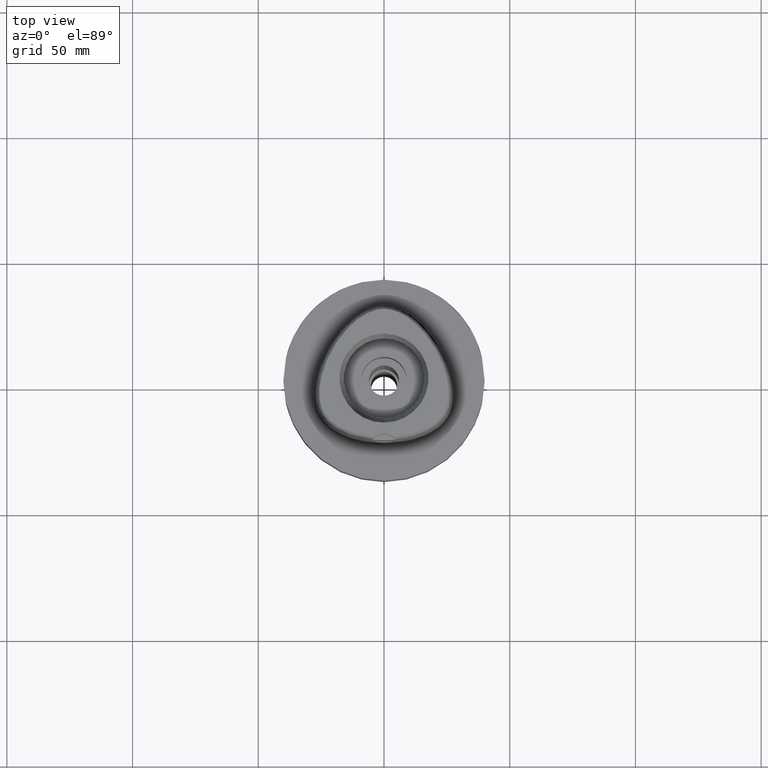
[diagram: clean part render]
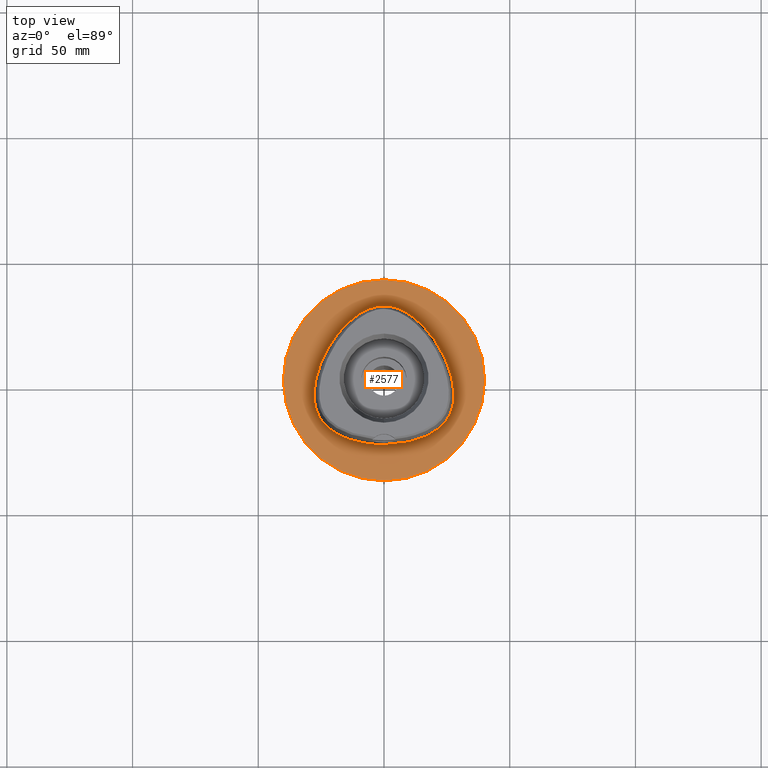
[diagram: same view with one face highlighted and labeled with its STEP entity id]
A machine part, top view. The second image highlights one B-rep face of the part: STEP entity #2577.
In plain terms, the highlighted planar face has unit normal (0, 0, -1).
Its self-contained STEP definition (entity closure, byte-faithful):
#267=CARTESIAN_POINT('',(0.E0,1.359357947054E-14,0.E0));
#268=DIRECTION('',(0.E0,0.E0,-1.E0));
#269=DIRECTION('',(0.E0,-1.E0,0.E0));
#270=AXIS2_PLACEMENT_3D('',#267,#268,#269);
#275=CARTESIAN_POINT('',(0.E0,1.359357947054E-14,0.E0));
#276=DIRECTION('',(0.E0,0.E0,-1.E0));
#277=DIRECTION('',(0.E0,1.E0,0.E0));
#278=AXIS2_PLACEMENT_3D('',#275,#276,#277);
#283=CARTESIAN_POINT('',(-8.036716515687E-12,-2.5575E1,2.597921877623E-14));
#284=CARTESIAN_POINT('',(1.338515790851E0,-2.5575E1,2.597921877623E-14));
#285=CARTESIAN_POINT('',(3.939707515365E0,-2.546652334613E1,
-1.205699739406E-14));
#286=CARTESIAN_POINT('',(7.652850955301E0,-2.500966422380E1,0.E0));
#287=CARTESIAN_POINT('',(1.106090576747E1,-2.429716651201E1,0.E0));
#288=CARTESIAN_POINT('',(1.407290725112E1,-2.339094231728E1,0.E0));
#289=CARTESIAN_POINT('',(1.667547947411E1,-2.234788213829E1,0.E0));
#290=CARTESIAN_POINT('',(1.889604778195E1,-2.121008268511E1,0.E0));
#291=CARTESIAN_POINT('',(2.077131512628E1,-2.000881807363E1,0.E0));
#292=CARTESIAN_POINT('',(2.234115916953E1,-1.876659578607E1,0.E0));
#293=CARTESIAN_POINT('',(2.365406626127E1,-1.748614780695E1,0.E0));
#294=CARTESIAN_POINT('',(2.474292153434E1,-1.617030510265E1,0.E0));
#295=CARTESIAN_POINT('',(2.565228241188E1,-1.478296109799E1,0.E0));
#296=CARTESIAN_POINT('',(2.638887413372E1,-1.331055779839E1,0.E0));
#297=CARTESIAN_POINT('',(2.697976738765E1,-1.171140902483E1,0.E0));
#298=CARTESIAN_POINT('',(2.742760276128E1,-9.940217552898E0,0.E0));
#299=CARTESIAN_POINT('',(2.771668285009E1,-7.955905387904E0,0.E0));
#300=CARTESIAN_POINT('',(2.781652427170E1,-5.722018758381E0,0.E0));
#301=CARTESIAN_POINT('',(2.768735631323E1,-3.222991363601E0,0.E0));
#302=CARTESIAN_POINT('',(2.728353238384E1,-4.383059677163E-1,0.E0));
#303=CARTESIAN_POINT('',(2.655541475124E1,2.629654649069E0,0.E0));
#304=CARTESIAN_POINT('',(2.546170844383E1,5.940727057829E0,0.E0));
#305=CARTESIAN_POINT('',(2.398430672666E1,9.409517157888E0,0.E0));
#306=CARTESIAN_POINT('',(2.214456893484E1,1.290129967404E1,0.E0));
#307=CARTESIAN_POINT('',(2.003170428117E1,1.622404225064E1,0.E0));
#308=CARTESIAN_POINT('',(1.776055672195E1,1.922002565626E1,0.E0));
#309=CARTESIAN_POINT('',(1.544103451833E1,2.179939224478E1,0.E0));
#310=CARTESIAN_POINT('',(1.315510487299E1,2.393917309643E1,0.E0));
#311=CARTESIAN_POINT('',(1.095278745299E1,2.566039820528E1,0.E0));
#312=CARTESIAN_POINT('',(8.861642581630E0,2.700328474995E1,0.E0));
#313=CARTESIAN_POINT('',(6.891001859301E0,2.801632322351E1,0.E0));
#314=CARTESIAN_POINT('',(5.027045924749E0,2.874987980974E1,0.E0));
#315=CARTESIAN_POINT('',(3.265714107171E0,2.923924022867E1,0.E0));
#316=CARTESIAN_POINT('',(1.594839101736E0,2.951637111680E1,0.E0));
#317=CARTESIAN_POINT('',(5.235322502723E-1,2.957499999999E1,
1.957693266756E-14));
#318=CARTESIAN_POINT('',(2.336300583330E-11,2.9575E1,1.957693266756E-14));
#323=CARTESIAN_POINT('',(2.336300583330E-11,2.9575E1,1.957693266756E-14));
#324=CARTESIAN_POINT('',(-5.239019517998E-1,2.9575E1,1.957693266756E-14));
#325=CARTESIAN_POINT('',(-1.595906712881E0,2.951628925508E1,0.E0));
#326=CARTESIAN_POINT('',(-3.267739579839E0,2.923882224383E1,0.E0));
#327=CARTESIAN_POINT('',(-5.029833256539E0,2.874896327576E1,0.E0));
#328=CARTESIAN_POINT('',(-6.894604323008E0,2.801474661946E1,0.E0));
#329=CARTESIAN_POINT('',(-8.867238250302E0,2.700012191094E1,0.E0));
#330=CARTESIAN_POINT('',(-1.095984429612E1,2.565545705615E1,0.E0));
#331=CARTESIAN_POINT('',(-1.316422155477E1,2.393144615710E1,0.E0));
#332=CARTESIAN_POINT('',(-1.545129622648E1,2.178895709120E1,0.E0));
#333=CARTESIAN_POINT('',(-1.777137331456E1,1.920698742816E1,0.E0));
#334=CARTESIAN_POINT('',(-2.004270671218E1,1.620823259710E1,0.E0));
#335=CARTESIAN_POINT('',(-2.215419289204E1,1.288464896551E1,0.E0));
#336=CARTESIAN_POINT('',(-2.399181201204E1,9.393612293097E0,0.E0));
#337=CARTESIAN_POINT('',(-2.546689387072E1,5.926867792512E0,0.E0));
#338=CARTESIAN_POINT('',(-2.655843240716E1,2.618507370009E0,0.E0));
#339=CARTESIAN_POINT('',(-2.728415958214E1,-4.425142150947E-1,0.E0));
#340=CARTESIAN_POINT('',(-2.768757854154E1,-3.224749542560E0,0.E0));
#341=CARTESIAN_POINT('',(-2.781635082285E1,-5.724096363786E0,0.E0));
#342=CARTESIAN_POINT('',(-2.771718069971E1,-7.950065730501E0,0.E0));
#343=CARTESIAN_POINT('',(-2.742757293862E1,-9.942098561844E0,0.E0));
#344=CARTESIAN_POINT('',(-2.697755532506E1,-1.171906647461E1,0.E0));
#345=CARTESIAN_POINT('',(-2.638387045215E1,-1.332304910609E1,0.E0));
#346=CARTESIAN_POINT('',(-2.564327102189E1,-1.479751683575E1,0.E0));
#347=CARTESIAN_POINT('',(-2.474754439704E1,-1.616284409147E1,0.E0));
#348=CARTESIAN_POINT('',(-2.366540157207E1,-1.747327716717E1,0.E0));
#349=CARTESIAN_POINT('',(-2.236623608333E1,-1.874430223870E1,0.E0));
#350=CARTESIAN_POINT('',(-2.079489871268E1,-1.999235250855E1,0.E0));
#351=CARTESIAN_POINT('',(-1.892013683464E1,-2.119629755734E1,0.E0));
#352=CARTESIAN_POINT('',(-1.670016081029E1,-2.233679029839E1,0.E0));
#353=CARTESIAN_POINT('',(-1.409629379963E1,-2.338290496429E1,0.E0));
#354=CARTESIAN_POINT('',(-1.108212629479E1,-2.429193249145E1,0.E0));
#355=CARTESIAN_POINT('',(-7.667525787140E0,-2.500759724276E1,0.E0));
#356=CARTESIAN_POINT('',(-3.941003796075E0,-2.546667308772E1,
-1.205699739406E-14));
#357=CARTESIAN_POINT('',(-1.338369522533E0,-2.5575E1,2.597921877623E-14));
#358=CARTESIAN_POINT('',(-8.036716515687E-12,-2.5575E1,2.597921877623E-14));
#1642=VERTEX_POINT('',#323);
#1643=VERTEX_POINT('',#358);
#1648=CARTESIAN_POINT('',(0.E0,-4.E1,0.E0));
#1649=CARTESIAN_POINT('',(0.E0,4.E1,0.E0));
#1650=VERTEX_POINT('',#1648);
#1651=VERTEX_POINT('',#1649);
#2561=CARTESIAN_POINT('',(0.E0,1.224646799147E-14,0.E0));
#2562=DIRECTION('',(0.E0,0.E0,-1.E0));
#2563=DIRECTION('',(0.E0,-1.E0,0.E0));
#2564=AXIS2_PLACEMENT_3D('',#2561,#2562,#2563);
#2565=PLANE('',#2564);
#2567=ORIENTED_EDGE('',*,*,#2566,.T.);
#2569=ORIENTED_EDGE('',*,*,#2568,.T.);
#2570=EDGE_LOOP('',(#2567,#2569));
#2571=FACE_OUTER_BOUND('',#2570,.F.);
#2573=ORIENTED_EDGE('',*,*,#2572,.T.);
#2574=ORIENTED_EDGE('',*,*,#2544,.T.);
#2575=EDGE_LOOP('',(#2573,#2574));
#2576=FACE_BOUND('',#2575,.F.);
#271=CIRCLE('',#270,4.E1);
#279=CIRCLE('',#278,4.E1);
#319=B_SPLINE_CURVE_WITH_KNOTS('',3,(#283,#284,#285,#286,#287,#288,#289,#290,
#291,#292,#293,#294,#295,#296,#297,#298,#299,#300,#301,#302,#303,#304,#305,#306,
#307,#308,#309,#310,#311,#312,#313,#314,#315,#316,#317,#318),.UNSPECIFIED.,.F.,
.F.,(4,1,1,1,1,1,1,1,1,1,1,1,1,1,1,1,1,1,1,1,1,1,1,1,1,1,1,1,1,1,1,1,1,4),(0.E0,
3.030303030303E-2,6.060606060606E-2,9.090909090909E-2,1.212121212121E-1,
1.515151515152E-1,1.818181818182E-1,2.121212121212E-1,2.424242424242E-1,
2.727272727273E-1,3.030303030303E-1,3.333333333333E-1,3.636363636364E-1,
3.939393939394E-1,4.242424242424E-1,4.545454545455E-1,4.848484848485E-1,
5.151515151515E-1,5.454545454545E-1,5.757575757576E-1,6.060606060606E-1,
6.363636363636E-1,6.666666666667E-1,6.969696969697E-1,7.272727272727E-1,
7.575757575758E-1,7.878787878788E-1,8.181818181818E-1,8.484848484848E-1,
8.787878787879E-1,9.090909090909E-1,9.393939393939E-1,9.696969696970E-1,1.E0),
.UNSPECIFIED.);
#359=B_SPLINE_CURVE_WITH_KNOTS('',3,(#323,#324,#325,#326,#327,#328,#329,#330,
#331,#332,#333,#334,#335,#336,#337,#338,#339,#340,#341,#342,#343,#344,#345,#346,
#347,#348,#349,#350,#351,#352,#353,#354,#355,#356,#357,#358),.UNSPECIFIED.,.F.,
.F.,(4,1,1,1,1,1,1,1,1,1,1,1,1,1,1,1,1,1,1,1,1,1,1,1,1,1,1,1,1,1,1,1,1,4),(0.E0,
3.030303030303E-2,6.060606060606E-2,9.090909090909E-2,1.212121212121E-1,
1.515151515152E-1,1.818181818182E-1,2.121212121212E-1,2.424242424242E-1,
2.727272727273E-1,3.030303030303E-1,3.333333333333E-1,3.636363636364E-1,
3.939393939394E-1,4.242424242424E-1,4.545454545455E-1,4.848484848485E-1,
5.151515151515E-1,5.454545454545E-1,5.757575757576E-1,6.060606060606E-1,
6.363636363636E-1,6.666666666667E-1,6.969696969697E-1,7.272727272727E-1,
7.575757575758E-1,7.878787878788E-1,8.181818181818E-1,8.484848484848E-1,
8.787878787879E-1,9.090909090909E-1,9.393939393939E-1,9.696969696970E-1,1.E0),
.UNSPECIFIED.);
#2544=EDGE_CURVE('',#1642,#1643,#359,.T.);
#2566=EDGE_CURVE('',#1650,#1651,#271,.T.);
#2568=EDGE_CURVE('',#1651,#1650,#279,.T.);
#2572=EDGE_CURVE('',#1643,#1642,#319,.T.);
#2577=ADVANCED_FACE('',(#2571,#2576),#2565,.F.);